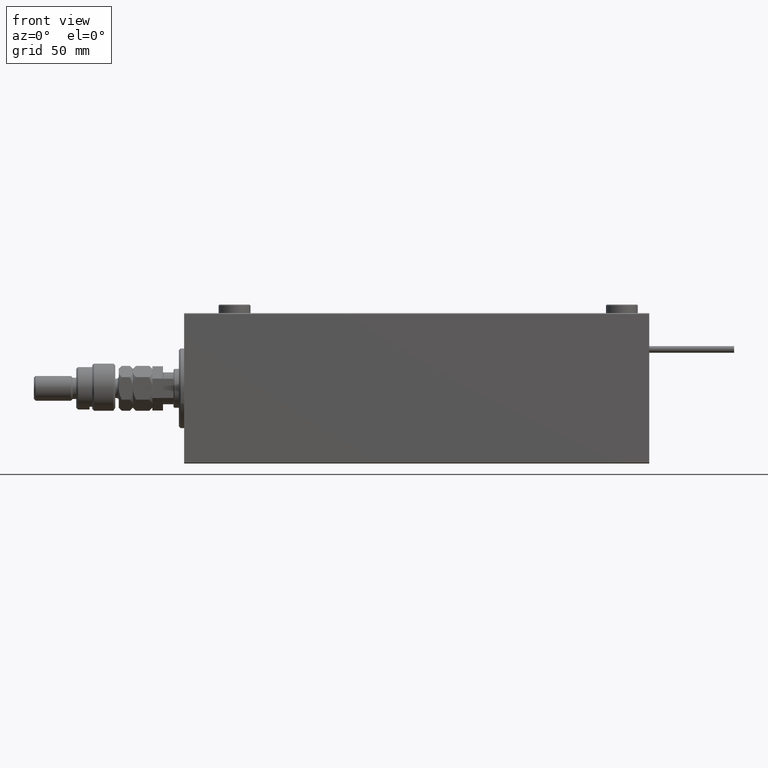
[diagram: clean part render]
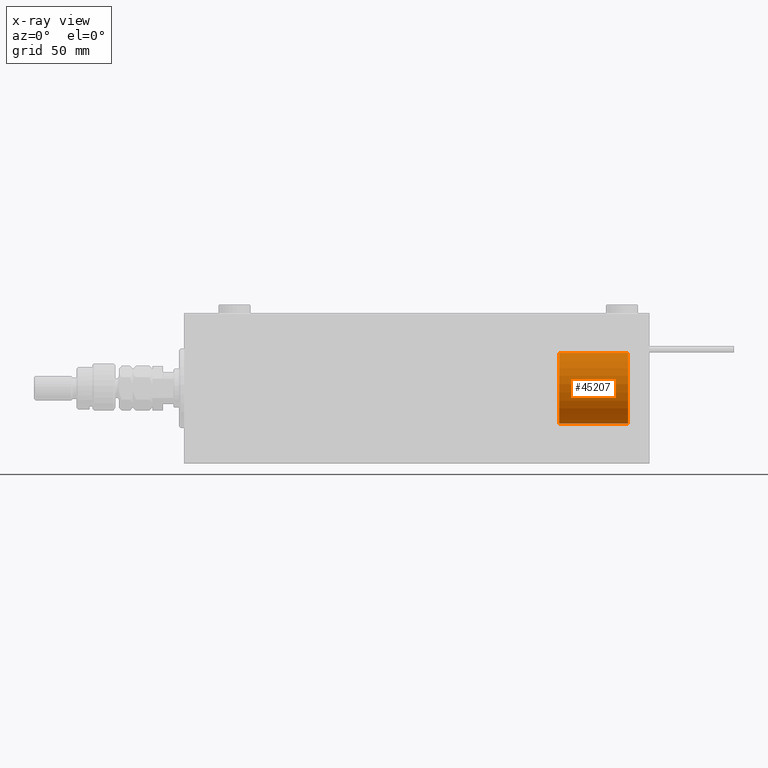
[diagram: x-ray — body ghosted, one internal face saturated and labeled with its STEP entity id]
A machine part, front view, then the same camera in x-ray: the body is ghosted and one INTERNAL B-rep face — a face not visible from any outside direction — is saturated and labeled: STEP entity #45207.
In plain terms, the highlighted cylindrical surface (edge-blend (fillet) strip) has radius 20 mm, axis along (1, -0, -0).
Its self-contained STEP definition (entity closure, byte-faithful):
#726 = DIRECTION ( 'NONE',  ( -0.000000000000000000, -0.000000000000000000, -1.000000000000000000 ) ) ;
#2072 = VERTEX_POINT ( 'NONE', #45183 ) ;
#4426 = LINE ( 'NONE', #4972, #25517 ) ;
#4485 = VERTEX_POINT ( 'NONE', #45476 ) ;
#4853 = EDGE_CURVE ( 'NONE', #38849, #4485, #4426, .T. ) ;
#4886 = VECTOR ( 'NONE', #8358, 1000.000000000000000 ) ;
#4972 = CARTESIAN_POINT ( 'NONE',  ( -20.00000000000000000, 0.000000000000000000, 39.00000000000000000 ) ) ;
#5333 = DIRECTION ( 'NONE',  ( 1.000000000000000000, 0.000000000000000000, 0.000000000000000000 ) ) ;
#6525 = CARTESIAN_POINT ( 'NONE',  ( -20.00000000000000000, 0.000000000000000000, 39.00000000000000000 ) ) ;
#6852 = DIRECTION ( 'NONE',  ( 0.000000000000000000, 0.000000000000000000, 1.000000000000000000 ) ) ;
#8085 = CARTESIAN_POINT ( 'NONE',  ( 20.00000000000000000, 2.449293598294706513E-15, 39.00000000000000000 ) ) ;
#8358 = DIRECTION ( 'NONE',  ( -0.000000000000000000, -0.000000000000000000, -1.000000000000000000 ) ) ;
#12832 = CARTESIAN_POINT ( 'NONE',  ( 0.000000000000000000, 0.000000000000000000, 39.00000000000000000 ) ) ;
#12953 = AXIS2_PLACEMENT_3D ( 'NONE', #12832, #726, #29591 ) ;
#16068 = EDGE_LOOP ( 'NONE', ( #51240, #36683, #24440, #31613 ) ) ;
#17849 = CARTESIAN_POINT ( 'NONE',  ( 20.00000000000000000, 2.449293598294706513E-15, 39.00000000000000000 ) ) ;
#18538 = CIRCLE ( 'NONE', #39574, 20.00000000000000000 ) ;
#18581 = CIRCLE ( 'NONE', #50178, 20.00000000000000000 ) ;
#18746 = EDGE_CURVE ( 'NONE', #43564, #2072, #32808, .T. ) ;
#23158 = DIRECTION ( 'NONE',  ( 0.000000000000000000, 0.000000000000000000, 1.000000000000000000 ) ) ;
#24440 = ORIENTED_EDGE ( 'NONE', *, *, #4853, .T. ) ;
#25517 = VECTOR ( 'NONE', #33830, 1000.000000000000000 ) ;
#29591 = DIRECTION ( 'NONE',  ( -1.000000000000000000, 0.000000000000000000, 0.000000000000000000 ) ) ;
#31613 = ORIENTED_EDGE ( 'NONE', *, *, #54015, .T. ) ;
#32808 = LINE ( 'NONE', #8085, #4886 ) ;
#33166 = FACE_OUTER_BOUND ( 'NONE', #16068, .T. ) ;
#33830 = DIRECTION ( 'NONE',  ( -0.000000000000000000, -0.000000000000000000, -1.000000000000000000 ) ) ;
#36683 = ORIENTED_EDGE ( 'NONE', *, *, #53045, .F. ) ;
#38849 = VERTEX_POINT ( 'NONE', #6525 ) ;
#39574 = AXIS2_PLACEMENT_3D ( 'NONE', #52750, #6852, #53299 ) ;
#43564 = VERTEX_POINT ( 'NONE', #17849 ) ;
#44058 = CARTESIAN_POINT ( 'NONE',  ( 0.000000000000000000, 0.000000000000000000, 0.000000000000000000 ) ) ;
#45183 = CARTESIAN_POINT ( 'NONE',  ( 20.00000000000000000, 2.449293598294706513E-15, 0.000000000000000000 ) ) ;
#45207 = ADVANCED_FACE ( 'NONE', ( #33166 ), #50479, .T. ) ;
#45476 = CARTESIAN_POINT ( 'NONE',  ( -20.00000000000000000, 0.000000000000000000, 0.000000000000000000 ) ) ;
#50178 = AXIS2_PLACEMENT_3D ( 'NONE', #44058, #23158, #5333 ) ;
#50479 = CYLINDRICAL_SURFACE ( 'NONE', #12953, 20.00000000000000000 ) ;
#51240 = ORIENTED_EDGE ( 'NONE', *, *, #18746, .F. ) ;
#52750 = CARTESIAN_POINT ( 'NONE',  ( 0.000000000000000000, 0.000000000000000000, 39.00000000000000000 ) ) ;
#53045 = EDGE_CURVE ( 'NONE', #38849, #43564, #18538, .T. ) ;
#53299 = DIRECTION ( 'NONE',  ( 1.000000000000000000, 0.000000000000000000, 0.000000000000000000 ) ) ;
#54015 = EDGE_CURVE ( 'NONE', #4485, #2072, #18581, .T. ) ;